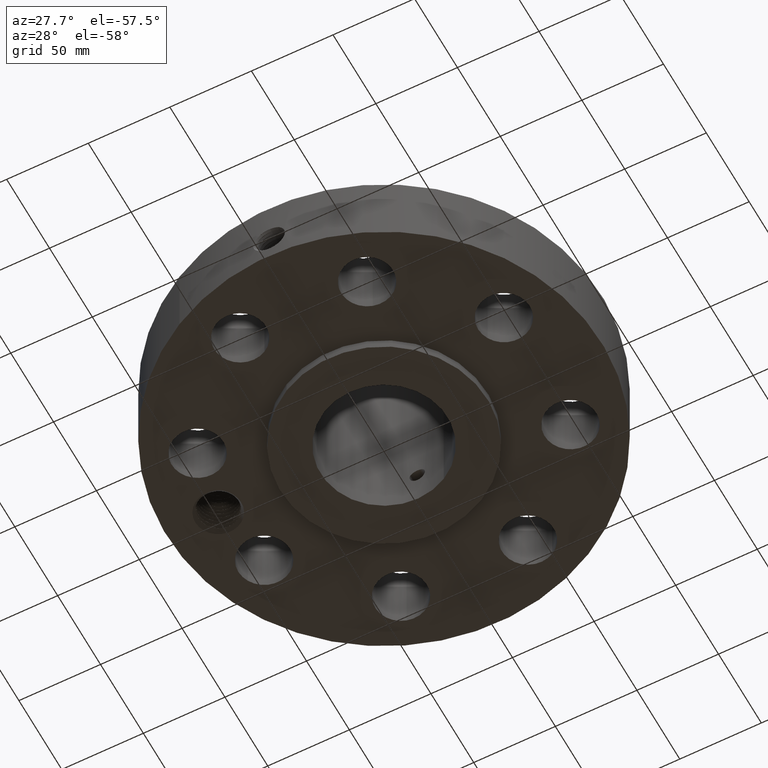
[diagram: clean part render]
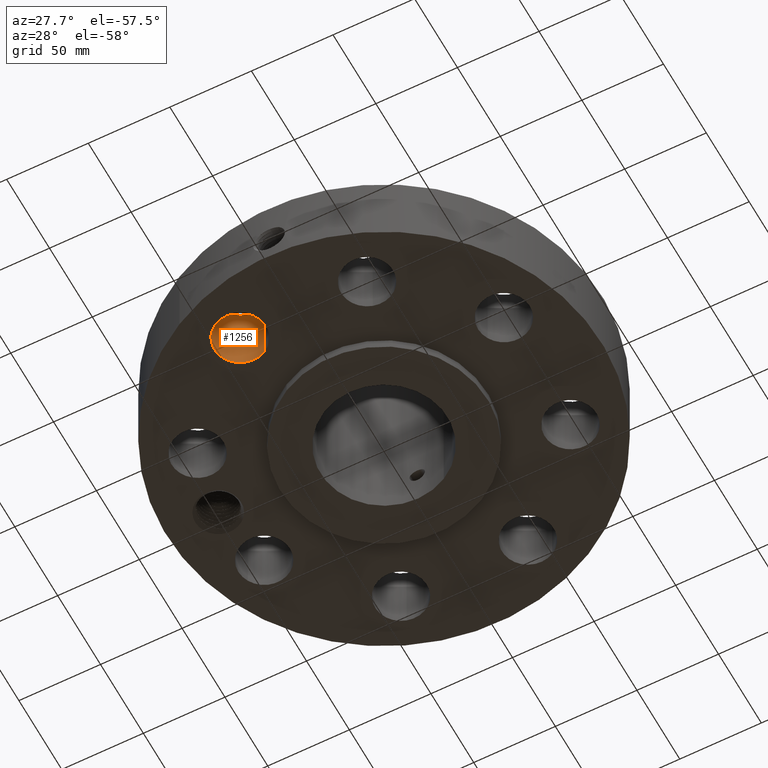
[diagram: same view with one face highlighted and labeled with its STEP entity id]
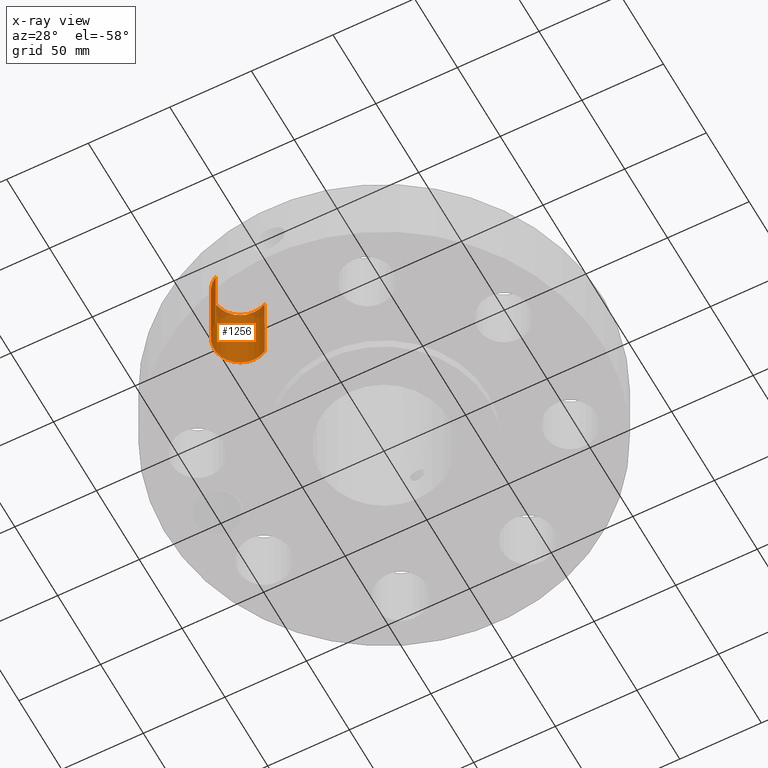
[diagram: x-ray of the same camera — body ghosted, the highlighted face saturated]
A machine part, auxiliary view. The second image highlights one B-rep face of the part: STEP entity #1256.
The next image is the same camera in x-ray: the body ghosted, the highlighted face saturated — about 9% of this face is hidden behind the body in this view.
In plain terms, the highlighted cylindrical surface (edge-blend (fillet) strip) has radius 15.875 mm, axis along (0, -0, -1).
Its self-contained STEP definition (entity closure, byte-faithful):
#294=AXIS2_PLACEMENT_3D('Circle Axis2P3D',#292,#293,$) ;
#609=AXIS2_PLACEMENT_3D('Circle Axis2P3D',#607,#608,$) ;
#1231=AXIS2_PLACEMENT_3D('Cylinder Axis2P3D',#1228,#1229,#1230) ;
#287=CARTESIAN_POINT('Vertex',(-1.23109276784,-3.14702902888,0.250000000001)) ;
#289=CARTESIAN_POINT('Vertex',(-1.8303746911,-4.24400723124,0.250000000001)) ;
#292=CARTESIAN_POINT('Axis2P3D Location',(-1.53073372947,-3.69551813006,0.250000000001)) ;
#607=CARTESIAN_POINT('Axis2P3D Location',(-1.53073372947,-3.69551813006,2.13000000001)) ;
#611=CARTESIAN_POINT('Vertex',(-1.8303746911,-4.24400723124,2.13000000001)) ;
#613=CARTESIAN_POINT('Vertex',(-1.23109276784,-3.14702902888,2.13000000001)) ;
#1228=CARTESIAN_POINT('Axis2P3D Location',(-1.53073372947,-3.69551813006,2.12606299213)) ;
#1233=CARTESIAN_POINT('Line Origine',(-1.23109276784,-3.14702902888,1.19)) ;
#1238=CARTESIAN_POINT('Line Origine',(-1.8303746911,-4.24400723124,1.19)) ;
#293=DIRECTION('Axis2P3D Direction',(0.,0.,-0.0393700787402)) ;
#608=DIRECTION('Axis2P3D Direction',(0.,0.,-0.0393700787402)) ;
#1229=DIRECTION('Axis2P3D Direction',(0.,-0.,-0.0393700787402)) ;
#1230=DIRECTION('Axis2P3D XDirection',(-0.0188750212049,-0.0345504945626,0.)) ;
#1234=DIRECTION('Vector Direction',(0.,0.,-0.0393700787402)) ;
#1239=DIRECTION('Vector Direction',(0.,0.,-0.0393700787402)) ;
#1235=VECTOR('Line Direction',#1234,0.0393700787402) ;
#1240=VECTOR('Line Direction',#1239,0.0393700787402) ;
#1251=ORIENTED_EDGE('',*,*,#1242,.F.) ;
#1252=ORIENTED_EDGE('',*,*,#296,.T.) ;
#1253=ORIENTED_EDGE('',*,*,#1237,.T.) ;
#1254=ORIENTED_EDGE('',*,*,#615,.F.) ;
#1256=ADVANCED_FACE('PartBody',(#1255),#1232,.F.) ;
#295=CIRCLE('generated circle',#294,0.625000000002) ;
#610=CIRCLE('generated circle',#609,0.625000000002) ;
#1232=CYLINDRICAL_SURFACE('generated cylinder',#1231,0.625000000002) ;
#296=EDGE_CURVE('',#290,#288,#295,.T.) ;
#615=EDGE_CURVE('',#612,#614,#610,.T.) ;
#1237=EDGE_CURVE('',#288,#614,#1236,.F.) ;
#1242=EDGE_CURVE('',#290,#612,#1241,.F.) ;
#1250=EDGE_LOOP('',(#1251,#1252,#1253,#1254)) ;
#1255=FACE_OUTER_BOUND('',#1250,.T.) ;
#1236=LINE('Line',#1233,#1235) ;
#1241=LINE('Line',#1238,#1240) ;
#288=VERTEX_POINT('',#287) ;
#290=VERTEX_POINT('',#289) ;
#612=VERTEX_POINT('',#611) ;
#614=VERTEX_POINT('',#613) ;